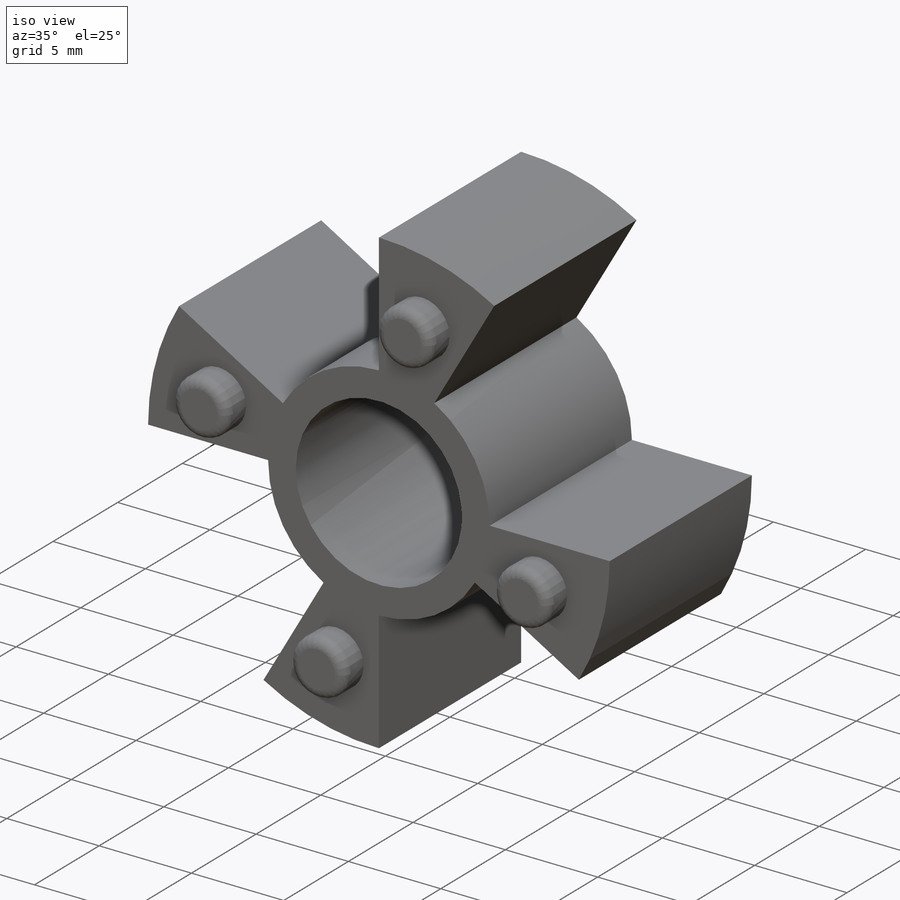
[diagram: iso view]
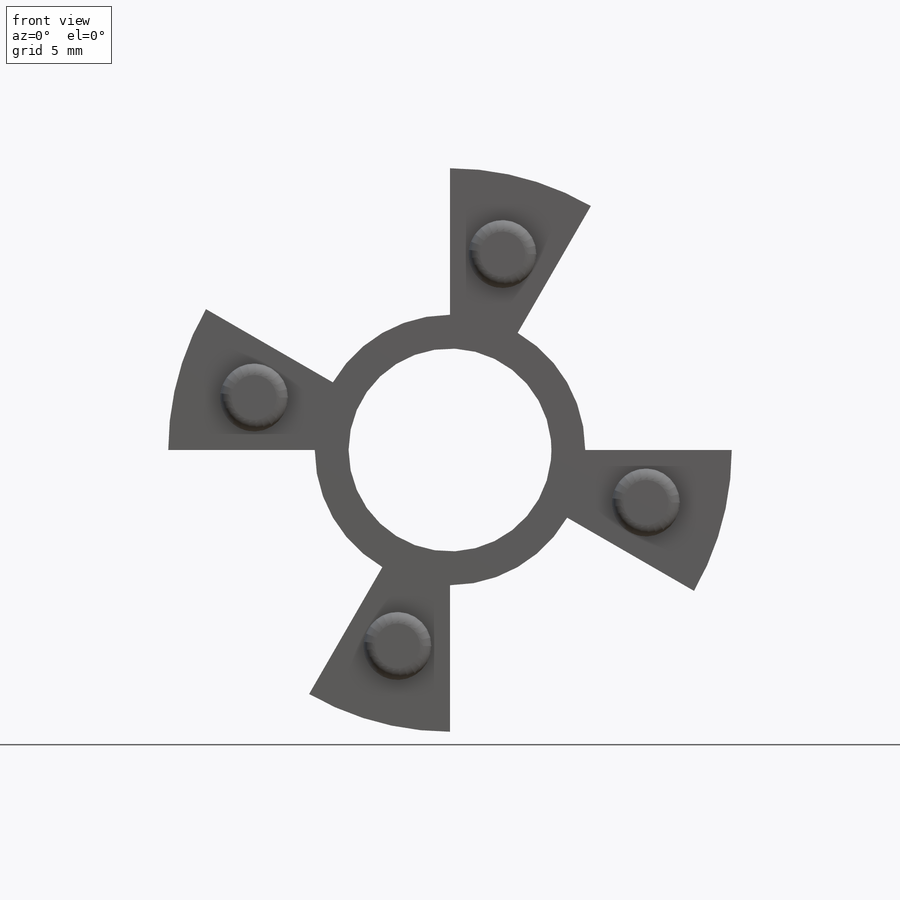
[diagram: front view]
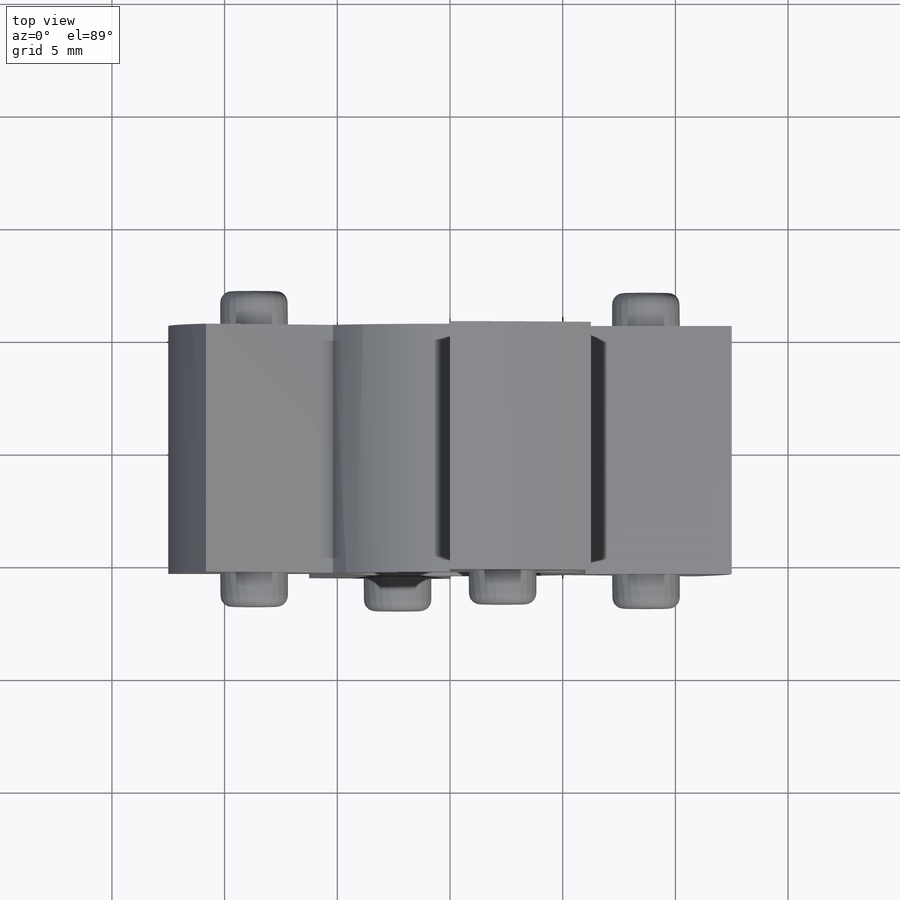
[diagram: top view]
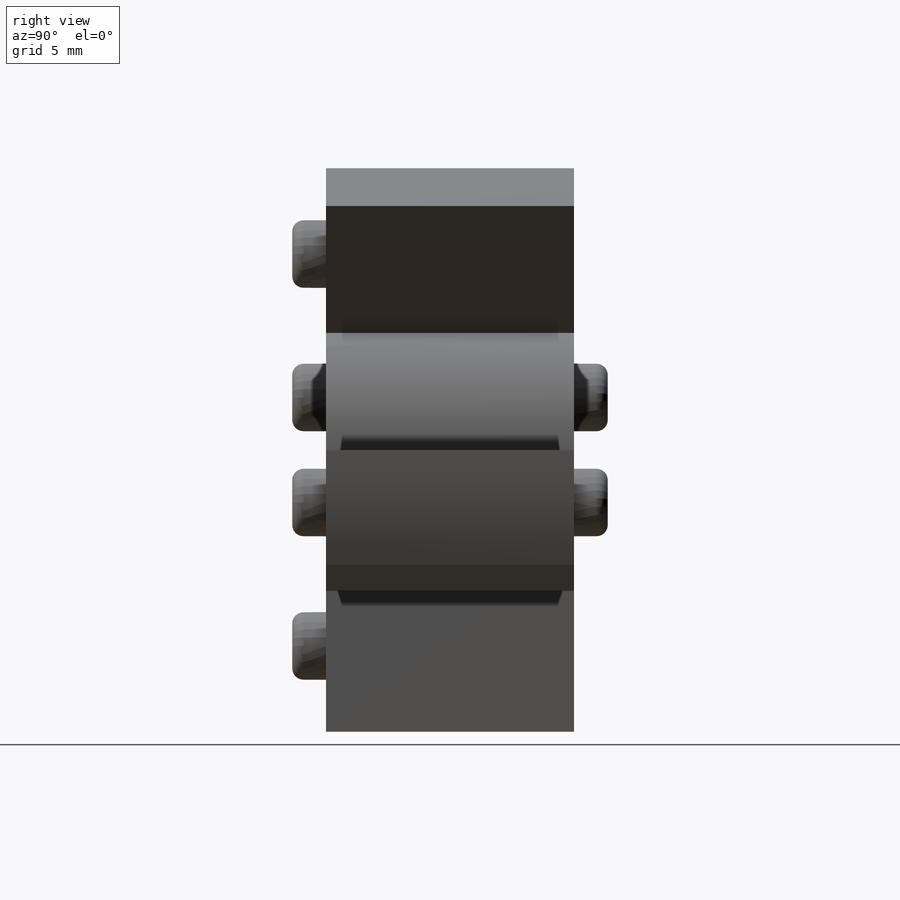
[diagram: right view]
SOLIDWORKS PART (.sldprt)
format: sldprt  version: not decoded by parser v0  size: 254,976 bytes
history: native  units: mm
features: plane x3, sketch x3, pattern_circular x3, extrude x2, material x1, cut_extrude x1, fillet x1, mirror x1 (+9 scaffold rows collapsed)
feature tree (24):
  scaffold x9  (default folders/planes/origin — collapsed)
  material  "POLIURETANO (11671)"
  plane  "Plano frontal"
  plane  "Plano superior"
  plane  "Plano direito"
  sketch  "Esboço1"  dims[D1=9.0mm D2=25.0mm]
  extrude  "Ressalto-extrusão1"  Depth=11mm
  sketch  "Esboço3"  dims[c1.D1=6.0mm c1.D2=~4.870417mm c2.D2=60.0deg]
  cut_extrude  "Corte-extrusão2"  [1 undecoded]
  pattern_circular  "PadrãoCircular1"  Count=4 Angle=360deg
  sketch  "Esboço4"  dims[c1.D2=3.0mm c1.D1=9.0mm c1.D3=~8.603048mm c2.D3=110.0deg]
  extrude  "Ressalto-extrusão2"  Depth=1.5mm
  fillet  "Filete1"  Radius=0.5mm
  mirror  "Espelhar1"
  pattern_circular  "PadrãoCircular2"  Count=4 Angle=360deg
  pattern_circular  "PadrãoCircular3"  Count=2 Angle=360deg
decode coverage: 9 of 11 modeling features carry decoded parameters
note: ~ marks probable driven/reference dimensions
note: 1 parameter value undecoded
note: suppression state not decoded; provenance and decode notes live in map.json
